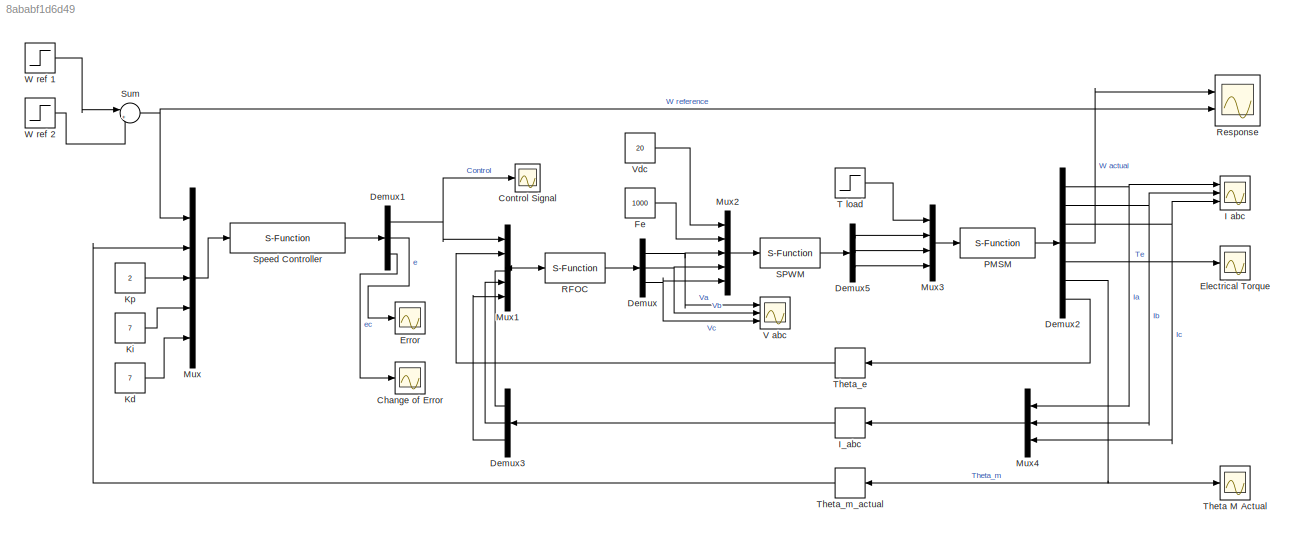
MODEL slx_8ababf1d6d49
KIND model
CONFIG AbsTol = auto
CONFIG EnableMultiTasking = off
CONFIG FixedStep = auto
CONFIG MaxStep = auto
CONFIG MinStep = auto
CONFIG RelTol = 1e-3
CONFIG SampleTimeConstraint = Unconstrained
CONFIG SolverName = VariableStepAuto
CONFIG StartTime = 0.0
CONFIG StopTime = 20
BLOCK [Scope] Change of Error
  Floating = off
  NumInputPorts = 1
  Ports = [1]
  ScopeSpecificationString = Simulink.scopes.TimeScopeBlockCfg('CurrentConfiguration', extmgr.ConfigurationSet(extmgr.Configuration('Core','General UI',true),extmgr.Configuration('Core','Source UI',true),extmgr.Configuration('Sources','WiredSimulink',true,'DataLoggingVariableName','ScopeData2'),extmgr.Configuration('Visuals','Time Domain',true,'SerializedDisplays',{struct('MinYLimReal','-34.8945','MaxYLimReal','47.51048','YLa...<+1392ch>
BLOCK [Scope] Control Signal
  Floating = off
  NumInputPorts = 1
  Ports = [1]
  ScopeSpecificationString = Simulink.scopes.TimeScopeBlockCfg('CurrentConfiguration', extmgr.ConfigurationSet(extmgr.Configuration('Core','General UI',true),extmgr.Configuration('Core','Source UI',true),extmgr.Configuration('Sources','WiredSimulink',true,'DataLoggingVariableName','ScopeData1'),extmgr.Configuration('Visuals','Time Domain',true,'SerializedDisplays',{struct('MinYLimReal','-18032446207.13424','MaxYLimReal','1622...<+1500ch>
BLOCK [Demux] Demux
  Outputs = 3
  Ports = [1, 3]
BLOCK [Demux] Demux1
  Outputs = 3
  Ports = [1, 3]
BLOCK [Demux] Demux2
  Outputs = 7
  Ports = [1, 7]
BLOCK [Demux] Demux3
  Outputs = 3
  Ports = [1, 3]
BLOCK [Demux] Demux5
  Outputs = 3
  Ports = [1, 3]
BLOCK [Scope] Electrical Torque
  Floating = off
  NumInputPorts = 1
  Ports = [1]
  ScopeSpecificationString = Simulink.scopes.TimeScopeBlockCfg('CurrentConfiguration', extmgr.ConfigurationSet(extmgr.Configuration('Core','General UI',true),extmgr.Configuration('Core','Source UI',true),extmgr.Configuration('Sources','WiredSimulink',true,'DataLoggingVariableName','ScopeData1'),extmgr.Configuration('Visuals','Time Domain',true,'SerializedDisplays',{struct('MinYLimReal','-0.29964','MaxYLimReal','0.57362','YLab...<+1461ch>
BLOCK [Scope] Error
  Floating = off
  NumInputPorts = 1
  Ports = [1]
  ScopeSpecificationString = Simulink.scopes.TimeScopeBlockCfg('CurrentConfiguration', extmgr.ConfigurationSet(extmgr.Configuration('Core','General UI',true),extmgr.Configuration('Core','Source UI',true),extmgr.Configuration('Sources','WiredSimulink',true,'DataLoggingVariableName','ScopeData1'),extmgr.Configuration('Visuals','Time Domain',true,'SerializedDisplays',{struct('MinYLimReal','-29.17845','MaxYLimReal','19.90872','YL...<+1393ch>
BLOCK [Constant] Fe
  Value = 1000
BLOCK [Scope] I abc
  Floating = off
  NumInputPorts = 3
  Ports = [3]
  ScopeSpecificationString = Simulink.scopes.TimeScopeBlockCfg('CurrentConfiguration', extmgr.ConfigurationSet(extmgr.Configuration('Core','General UI',true),extmgr.Configuration('Core','Source UI',true),extmgr.Configuration('Sources','WiredSimulink',true),extmgr.Configuration('Visuals','Time Domain',true,'SerializedDisplays',{struct('MinYLimReal','-1.11107','MaxYLimReal','1.07204','YLabelReal','','MinYLimMag','0.00000','MaxY...<+1469ch>
BLOCK [Memory] I_abc
BLOCK [Constant] Kd
  Value = 7
BLOCK [Constant] Ki
  Value = 7
BLOCK [Constant] Kp
  Value = 2
BLOCK [Mux] Mux
  DisplayOption = bar
  Inputs = 5
  Ports = [5, 1]
BLOCK [Mux] Mux1
  DisplayOption = bar
  Inputs = 5
  Ports = [5, 1]
BLOCK [Mux] Mux2
  DisplayOption = bar
  Inputs = 5
  Ports = [5, 1]
BLOCK [Mux] Mux3
  DisplayOption = bar
  Ports = [4, 1]
BLOCK [Mux] Mux4
  DisplayOption = bar
  Inputs = 3
  Ports = [3, 1]
BLOCK [S-Function] PMSM
  EnableBusSupport = off
  FunctionName = PMSM_Plant
  Ports = [1, 1]
  SFcnIsStateOwnerBlock = off
  SFunctionDeploymentMode = off
BLOCK [S-Function] RFOC
  EnableBusSupport = off
  FunctionName = RFOC
  Ports = [1, 1]
  SFcnIsStateOwnerBlock = off
  SFunctionDeploymentMode = off
BLOCK [Scope] Response
  Floating = off
  NumInputPorts = 2
  Ports = [2]
  ScopeSpecificationString = Simulink.scopes.TimeScopeBlockCfg('CurrentConfiguration', extmgr.ConfigurationSet(extmgr.Configuration('Core','General UI',true),extmgr.Configuration('Core','Source UI',true),extmgr.Configuration('Sources','WiredSimulink',true,'DataLoggingVariableName','ScopeData1'),extmgr.Configuration('Visuals','Time Domain',true,'SerializedDisplays',{struct('MinYLimReal','-2.07908','MaxYLimReal','18.71171','YLa...<+1499ch>
BLOCK [S-Function] SPWM
  EnableBusSupport = off
  FunctionName = SPWM
  Ports = [1, 1]
  SFcnIsStateOwnerBlock = off
  SFunctionDeploymentMode = off
BLOCK [S-Function] Speed Controller
  EnableBusSupport = off
  FunctionName = Speed_Controller_PID
  Ports = [1, 1]
  SFcnIsStateOwnerBlock = off
  SFunctionDeploymentMode = off
BLOCK [Sum] Sum
  Inputs = |++
  Ports = [2, 1]
BLOCK [Step] T load
  After = 0
  SampleTime = 0
  Time = 10
BLOCK [Scope] Theta M Actual
  Floating = off
  NumInputPorts = 1
  Ports = [1]
  ScopeSpecificationString = Simulink.scopes.TimeScopeBlockCfg('CurrentConfiguration', extmgr.ConfigurationSet(extmgr.Configuration('Core','General UI',true),extmgr.Configuration('Core','Source UI',true),extmgr.Configuration('Sources','WiredSimulink',true,'DataLoggingVariableName','ScopeData2'),extmgr.Configuration('Visuals','Time Domain',true,'SerializedDisplays',{struct('MinYLimReal','-42.32999','MaxYLimReal','380.96991','Y...<+1447ch>
BLOCK [Memory] Theta_e
BLOCK [Memory] Theta_m_actual
BLOCK [Scope] V abc
  Floating = off
  NumInputPorts = 3
  Ports = [3]
  ScopeSpecificationString = Simulink.scopes.TimeScopeBlockCfg('CurrentConfiguration', extmgr.ConfigurationSet(extmgr.Configuration('Core','General UI',true),extmgr.Configuration('Core','Source UI',true),extmgr.Configuration('Sources','WiredSimulink',true,'DataLoggingVariableName','ScopeData3'),extmgr.Configuration('Visuals','Time Domain',true,'SerializedDisplays',{struct('MinYLimReal','-264.46759','MaxYLimReal','267.63224','...<+1561ch>
BLOCK [Constant] Vdc
  Value = 20
BLOCK [Step] W ref 1
  After = 10
  Before = 5
  SampleTime = 0
  Time = 3
BLOCK [Step] W ref 2
  After = 5
  SampleTime = 0
  Time = 6
NET Demux1:1 -> Control Signal:1, Mux1:1
LINE Demux1:2 -> Error:1
LINE Demux1:3 -> Change of Error:1
NET Demux2:1 -> I abc:1, Mux4:1
NET Demux2:2 -> I abc:2, Mux4:2
NET Demux2:3 -> I abc:3, Mux4:3
LINE Demux2:4 -> Response:1
LINE Demux2:5 -> Electrical Torque:1
NET Demux2:6 -> Theta M Actual:1, Theta_m_actual:1
LINE Demux2:7 -> Theta_e:1
LINE Demux3:1 -> Mux1:3
LINE Demux3:2 -> Mux1:4
LINE Demux3:3 -> Mux1:5
LINE Demux5:1 -> Mux3:2
LINE Demux5:2 -> Mux3:3
LINE Demux5:3 -> Mux3:4
NET Demux:1 -> Mux2:3, V abc:1
NET Demux:2 -> Mux2:4, V abc:2
NET Demux:3 -> Mux2:5, V abc:3
LINE Fe:1 -> Mux2:2
LINE I_abc:1 -> Demux3:1
LINE Kd:1 -> Mux:5
LINE Ki:1 -> Mux:4
LINE Kp:1 -> Mux:3
LINE Mux1:1 -> RFOC:1
LINE Mux2:1 -> SPWM:1
LINE Mux3:1 -> PMSM:1
LINE Mux4:1 -> I_abc:1
LINE Mux:1 -> Speed Controller:1
LINE PMSM:1 -> Demux2:1
LINE RFOC:1 -> Demux:1
LINE SPWM:1 -> Demux5:1
LINE Speed Controller:1 -> Demux1:1
NET Sum:1 -> Mux:1, Response:2
LINE T load:1 -> Mux3:1
LINE Theta_e:1 -> Mux1:2
LINE Theta_m_actual:1 -> Mux:2
LINE Vdc:1 -> Mux2:1
LINE W ref 1:1 -> Sum:1
LINE W ref 2:1 -> Sum:2
note: NET lines group one-source signal fan-out (src -> all destinations, sorted); 1:1 wires keep LINE
